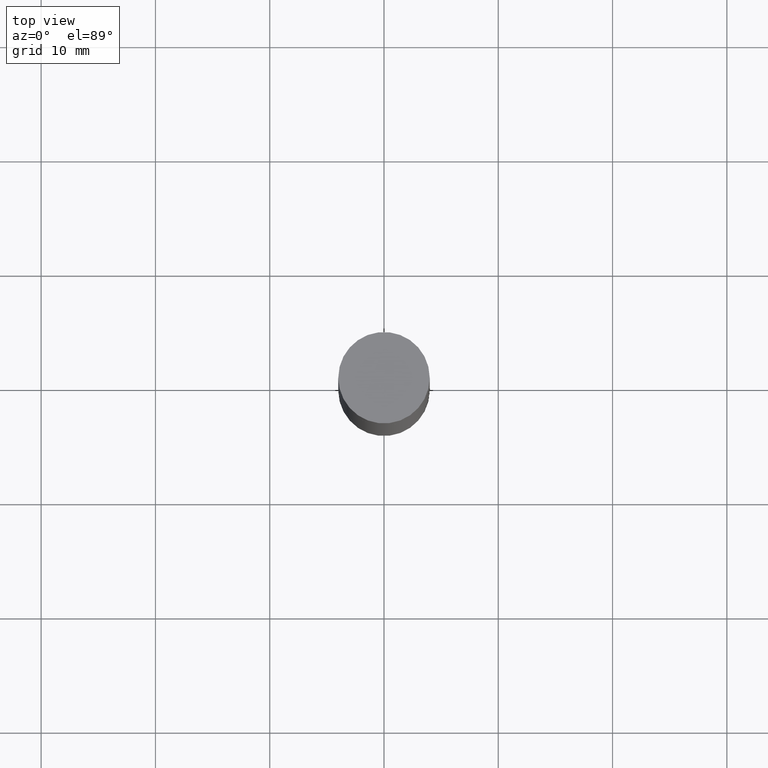
[diagram: clean part render]
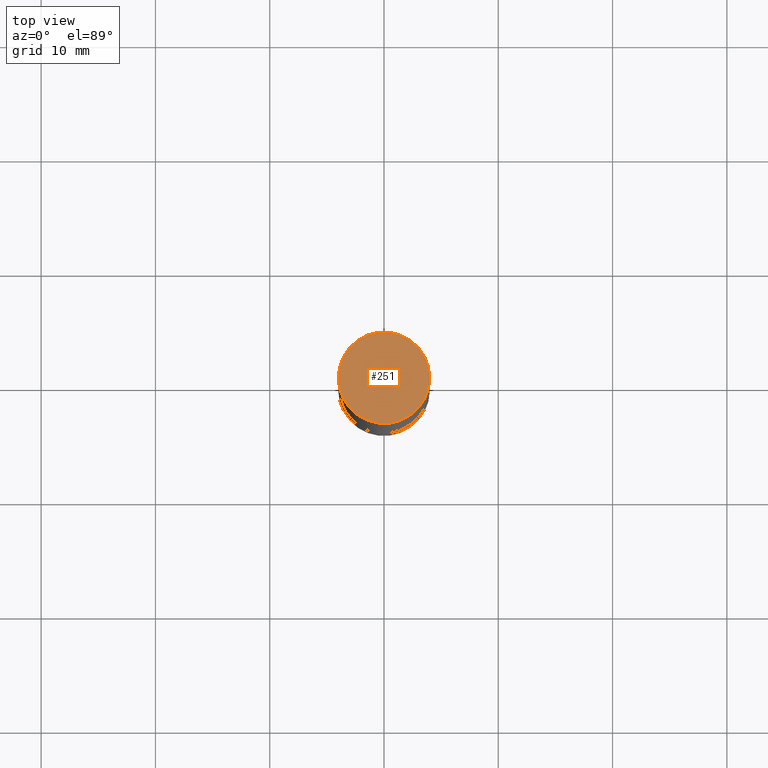
[diagram: same view with one face highlighted and labeled with its STEP entity id]
A machine part, top view. The second image highlights one B-rep face of the part: STEP entity #251.
In plain terms, the highlighted planar face has unit normal (0, 0, 1).
Its self-contained STEP definition (entity closure, byte-faithful):
#3 = AXIS2_PLACEMENT_3D ( 'NONE', #26, #36, #31 ) ;
#26 = CARTESIAN_POINT ( 'NONE',  ( 1.099816621735647434E-15, 0.1574999999999999456, 0.000000000000000000 ) ) ;
#31 = DIRECTION ( 'NONE',  ( -1.000000000000000000, 6.982962677686265922E-15, -9.839502134516470631E-33 ) ) ;
#36 = DIRECTION ( 'NONE',  ( 2.438088387897959769E-29, 3.492890411551753071E-15, 1.000000000000000000 ) ) ;
#37 = EDGE_LOOP ( 'NONE', ( #161, #361 ) ) ;
#44 = CARTESIAN_POINT ( 'NONE',  ( 6.065496279980994755E-29, 1.747461519580534218E-18, 5.463695987328526437E-16 ) ) ;
#83 = CIRCLE ( 'NONE', #358, 0.1575000000000000011 ) ;
#98 = CARTESIAN_POINT ( 'NONE',  ( 0.1575000000000000011, -1.098069160216006353E-15, 5.463695987328526437E-16 ) ) ;
#152 = VERTEX_POINT ( 'NONE', #98 ) ;
#161 = ORIENTED_EDGE ( 'NONE', *, *, #445, .T. ) ;
#168 = AXIS2_PLACEMENT_3D ( 'NONE', #44, #188, #506 ) ;
#173 = PLANE ( 'NONE',  #3 ) ;
#188 = DIRECTION ( 'NONE',  ( 2.445468806185136597E-29, 3.492890411551752677E-15, 1.000000000000000000 ) ) ;
#194 = CIRCLE ( 'NONE', #168, 0.1575000000000000011 ) ;
#204 = EDGE_CURVE ( 'NONE', #573, #152, #194, .T. ) ;
#251 = ADVANCED_FACE ( 'NONE', ( #324 ), #173, .T. ) ;
#324 = FACE_OUTER_BOUND ( 'NONE', #37, .T. ) ;
#358 = AXIS2_PLACEMENT_3D ( 'NONE', #564, #427, #612 ) ;
#361 = ORIENTED_EDGE ( 'NONE', *, *, #204, .T. ) ;
#390 = CARTESIAN_POINT ( 'NONE',  ( -0.1575000000000000011, 2.572551809600735932E-16, 5.463695987328556019E-16 ) ) ;
#427 = DIRECTION ( 'NONE',  ( 2.445468806185136597E-29, 3.492890411551752677E-15, 1.000000000000000000 ) ) ;
#445 = EDGE_CURVE ( 'NONE', #152, #573, #83, .T. ) ;
#506 = DIRECTION ( 'NONE',  ( 1.000000000000000000, -6.982962677686265922E-15, 0.000000000000000000 ) ) ;
#564 = CARTESIAN_POINT ( 'NONE',  ( 6.065496279980994755E-29, 1.747461519580534218E-18, 5.463695987328526437E-16 ) ) ;
#573 = VERTEX_POINT ( 'NONE', #390 ) ;
#612 = DIRECTION ( 'NONE',  ( 1.000000000000000000, -6.982962677686265922E-15, 0.000000000000000000 ) ) ;